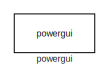
[diagram: root canvas - part 1/4, top left region]
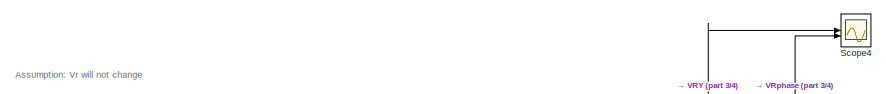
[diagram: root canvas - part 2/4, top left region]
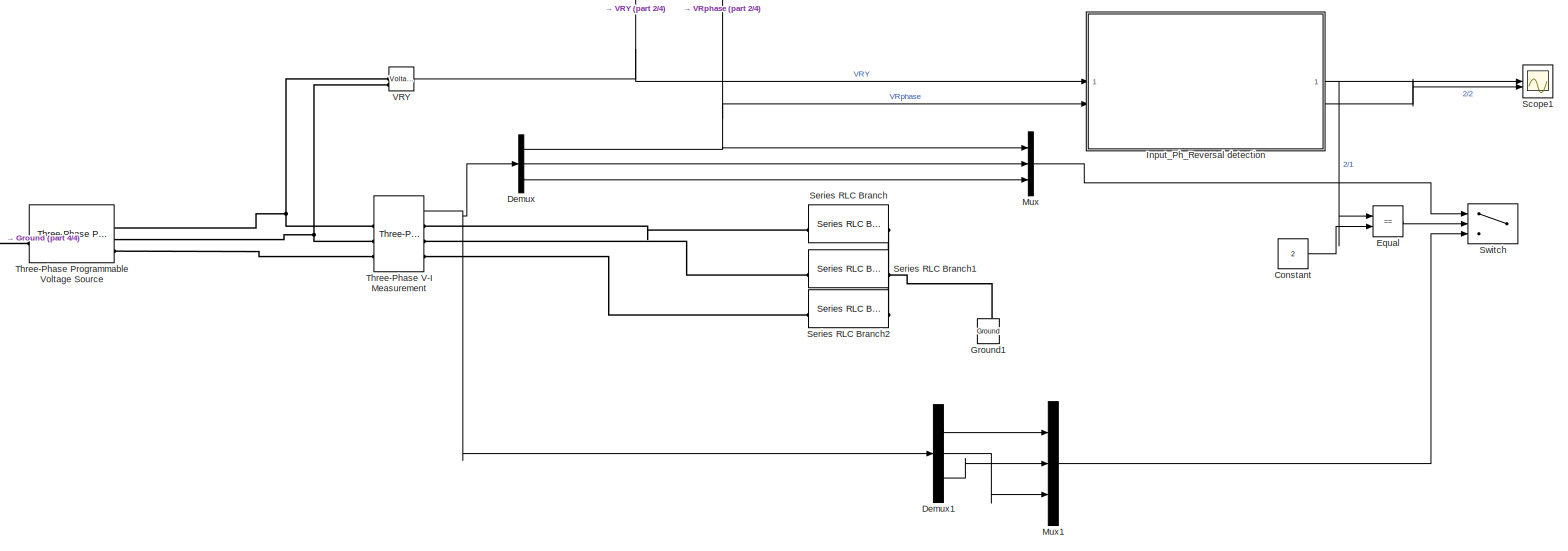
[diagram: root canvas - part 3/4, full width, middle band]
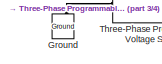
[diagram: root canvas - part 4/4, middle left region]
MODEL slx_fe5d1ba8eb64
KIND model
CONFIG AbsTol = auto
CONFIG EnableMultiTasking = off
CONFIG FixedStep = auto
CONFIG MaxStep = 1e-5
CONFIG MinStep = 1e-7
CONFIG RelTol = 1e-6
CONFIG SampleTimeConstraint = Unconstrained
CONFIG SolverName = ode45
CONFIG StartTime = 0.0
CONFIG StopTime = 10.0
BLOCK [Constant] Constant
  Value = 2
BLOCK [Demux] Demux
  Outputs = 3
BLOCK [Demux] Demux1
  Outputs = 3
BLOCK [RelationalOperator] Equal
  InputSameDT = off
  Operator = ==
  OutDataTypeStr = boolean
  RndMeth = Simplest
BLOCK [Reference] Ground  REF=spsGroundLib/Ground
  LibrarySourceBlock = sps_lib/Utilities/Ground
  NameLocation = right
  SourceBlock = spsGroundLib/Ground
  SourceType = Ground
BLOCK [Reference] Ground1  REF=spsGroundLib/Ground
  LibrarySourceBlock = sps_lib/Utilities/Ground
  NameLocation = right
  SourceBlock = spsGroundLib/Ground
  SourceType = Ground
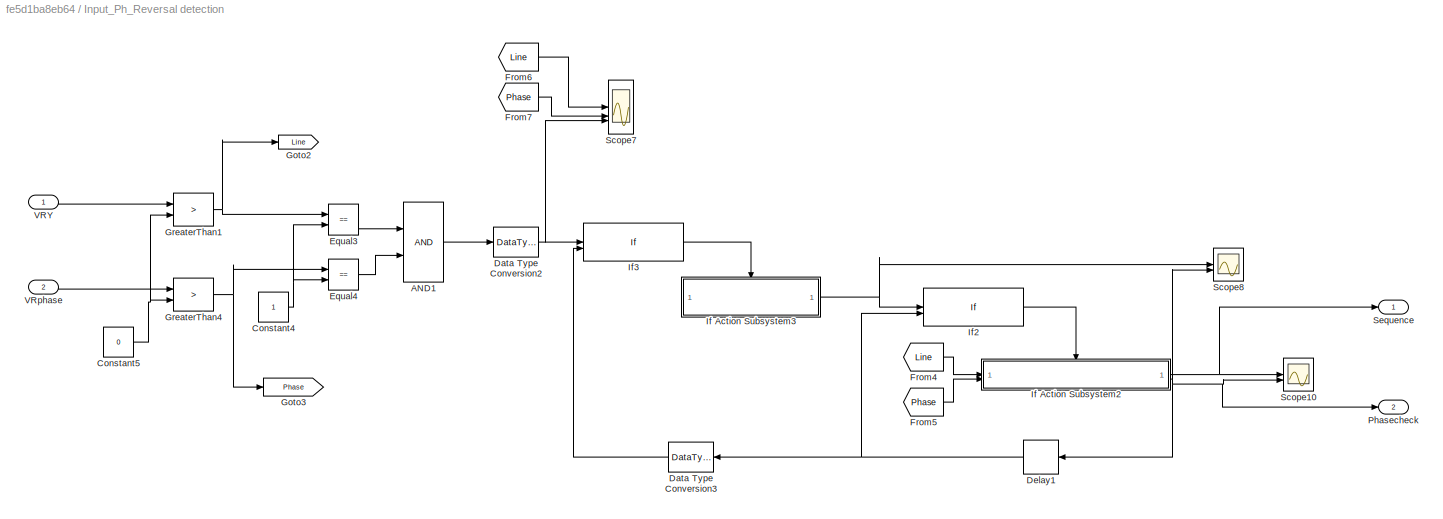
BLOCK [SubSystem] Input_Ph_Reversal detection
BLOCK [Logic] Input_Ph_Reversal detection/AND1
  AllPortsSameDT = off
  OutDataTypeStr = boolean
BLOCK [Constant] Input_Ph_Reversal detection/Constant4
BLOCK [Constant] Input_Ph_Reversal detection/Constant5
  Value = 0
BLOCK [DataTypeConversion] Input_Ph_Reversal detection/Data Type Conversion2
  OutDataTypeStr = single
  RndMeth = Floor
  SaturateOnIntegerOverflow = off
BLOCK [DataTypeConversion] Input_Ph_Reversal detection/Data Type Conversion3
  NameLocation = top
  OutDataTypeStr = single
  RndMeth = Floor
  SaturateOnIntegerOverflow = off
BLOCK [Delay] Input_Ph_Reversal detection/Delay1
  DelayLength = 1
  InputPortMap = u0
  NameLocation = top
BLOCK [RelationalOperator] Input_Ph_Reversal detection/Equal3
  InputSameDT = off
  Operator = ==
  OutDataTypeStr = boolean
  RndMeth = Simplest
BLOCK [RelationalOperator] Input_Ph_Reversal detection/Equal4
  InputSameDT = off
  Operator = ==
  OutDataTypeStr = boolean
  RndMeth = Simplest
BLOCK [From] Input_Ph_Reversal detection/From4
  GotoTag = Line
BLOCK [From] Input_Ph_Reversal detection/From5
  GotoTag = Phase
BLOCK [From] Input_Ph_Reversal detection/From6
  GotoTag = Line
BLOCK [From] Input_Ph_Reversal detection/From7
  GotoTag = Phase
BLOCK [Goto] Input_Ph_Reversal detection/Goto2
  GotoTag = Line
BLOCK [Goto] Input_Ph_Reversal detection/Goto3
  GotoTag = Phase
BLOCK [RelationalOperator] Input_Ph_Reversal detection/GreaterThan1
  InputSameDT = off
  Operator = >
  OutDataTypeStr = boolean
  RndMeth = Simplest
BLOCK [RelationalOperator] Input_Ph_Reversal detection/GreaterThan4
  InputSameDT = off
  Operator = >
  OutDataTypeStr = boolean
  RndMeth = Simplest
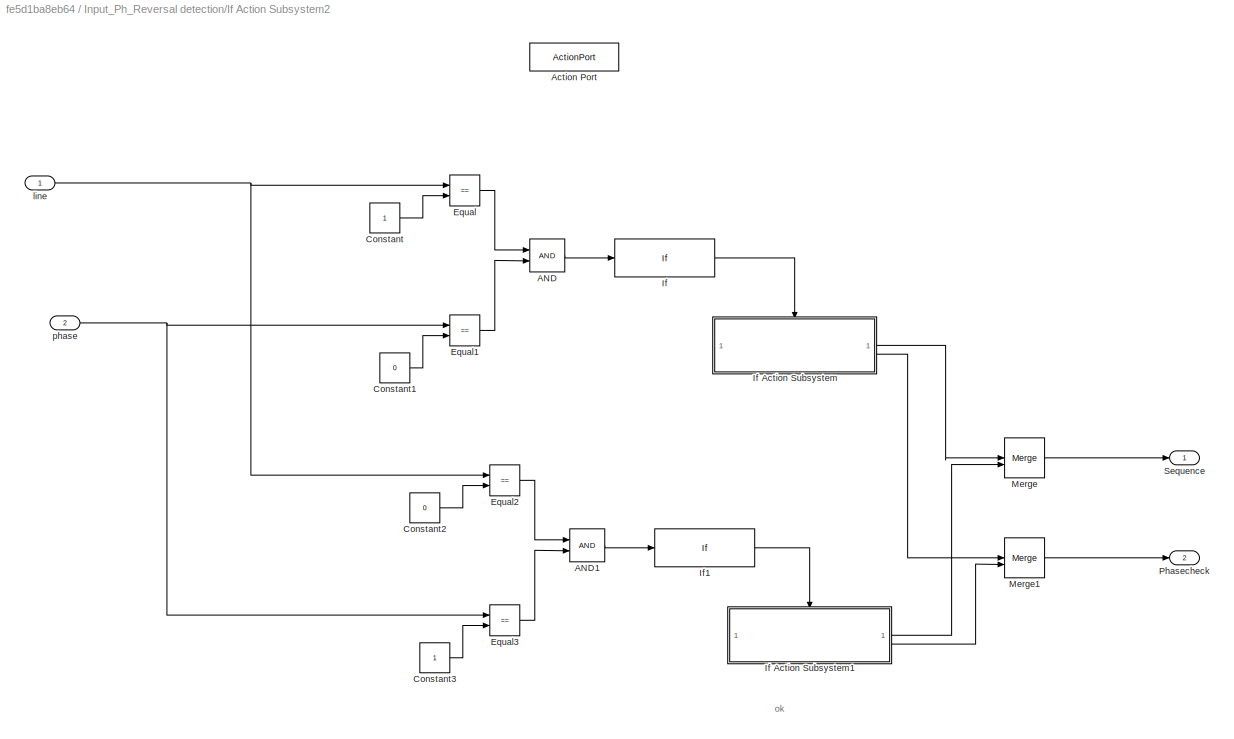
BLOCK [SubSystem] Input_Ph_Reversal detection/If Action Subsystem2
  TreatAsAtomicUnit = on
BLOCK [Logic] Input_Ph_Reversal detection/If Action Subsystem2/AND
  AllPortsSameDT = off
  OutDataTypeStr = boolean
BLOCK [Logic] Input_Ph_Reversal detection/If Action Subsystem2/AND1
  AllPortsSameDT = off
  OutDataTypeStr = boolean
BLOCK [ActionPort] Input_Ph_Reversal detection/If Action Subsystem2/Action Port
  ActionPortLabel = if(u1==1 & u2==0)
BLOCK [Constant] Input_Ph_Reversal detection/If Action Subsystem2/Constant
BLOCK [Constant] Input_Ph_Reversal detection/If Action Subsystem2/Constant1
  Value = 0
BLOCK [Constant] Input_Ph_Reversal detection/If Action Subsystem2/Constant2
  Value = 0
BLOCK [Constant] Input_Ph_Reversal detection/If Action Subsystem2/Constant3
BLOCK [RelationalOperator] Input_Ph_Reversal detection/If Action Subsystem2/Equal
  InputSameDT = off
  Operator = ==
  OutDataTypeStr = boolean
  RndMeth = Simplest
BLOCK [RelationalOperator] Input_Ph_Reversal detection/If Action Subsystem2/Equal1
  InputSameDT = off
  Operator = ==
  OutDataTypeStr = boolean
  RndMeth = Simplest
BLOCK [RelationalOperator] Input_Ph_Reversal detection/If Action Subsystem2/Equal2
  InputSameDT = off
  Operator = ==
  OutDataTypeStr = boolean
  RndMeth = Simplest
BLOCK [RelationalOperator] Input_Ph_Reversal detection/If Action Subsystem2/Equal3
  InputSameDT = off
  Operator = ==
  OutDataTypeStr = boolean
  RndMeth = Simplest
BLOCK [If] Input_Ph_Reversal detection/If Action Subsystem2/If
  IfExpression = u1 == 1
  ShowElse = off
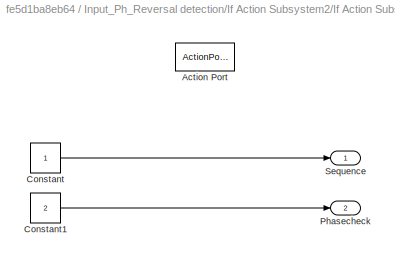
BLOCK [SubSystem] Input_Ph_Reversal detection/If Action Subsystem2/If Action Subsystem
  TreatAsAtomicUnit = on
BLOCK [ActionPort] Input_Ph_Reversal detection/If Action Subsystem2/If Action Subsystem/Action Port
  ActionPortLabel = if(u1 == 1)
BLOCK [Constant] Input_Ph_Reversal detection/If Action Subsystem2/If Action Subsystem/Constant
BLOCK [Constant] Input_Ph_Reversal detection/If Action Subsystem2/If Action Subsystem/Constant1
  Value = 2
BLOCK [Outport] Input_Ph_Reversal detection/If Action Subsystem2/If Action Subsystem/Phasecheck
  Port = 2
BLOCK [Outport] Input_Ph_Reversal detection/If Action Subsystem2/If Action Subsystem/Sequence
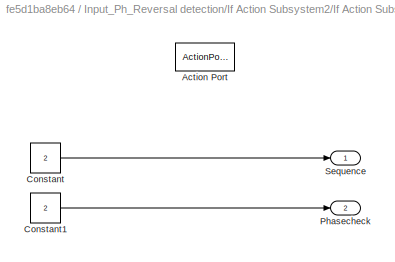
BLOCK [SubSystem] Input_Ph_Reversal detection/If Action Subsystem2/If Action Subsystem1
  TreatAsAtomicUnit = on
BLOCK [ActionPort] Input_Ph_Reversal detection/If Action Subsystem2/If Action Subsystem1/Action Port
  ActionPortLabel = if(u1 == 1)
BLOCK [Constant] Input_Ph_Reversal detection/If Action Subsystem2/If Action Subsystem1/Constant
  Value = 2
BLOCK [Constant] Input_Ph_Reversal detection/If Action Subsystem2/If Action Subsystem1/Constant1
  Value = 2
BLOCK [Outport] Input_Ph_Reversal detection/If Action Subsystem2/If Action Subsystem1/Phasecheck
  Port = 2
BLOCK [Outport] Input_Ph_Reversal detection/If Action Subsystem2/If Action Subsystem1/Sequence
BLOCK [If] Input_Ph_Reversal detection/If Action Subsystem2/If1
  IfExpression = u1 == 1
  ShowElse = off
BLOCK [Merge] Input_Ph_Reversal detection/If Action Subsystem2/Merge
BLOCK [Merge] Input_Ph_Reversal detection/If Action Subsystem2/Merge1
BLOCK [Outport] Input_Ph_Reversal detection/If Action Subsystem2/Phasecheck
  InitialOutput = [0]
  Port = 2
BLOCK [Outport] Input_Ph_Reversal detection/If Action Subsystem2/Sequence
  InitialOutput = [0]
BLOCK [Inport] Input_Ph_Reversal detection/If Action Subsystem2/line
BLOCK [Inport] Input_Ph_Reversal detection/If Action Subsystem2/phase
  Port = 2
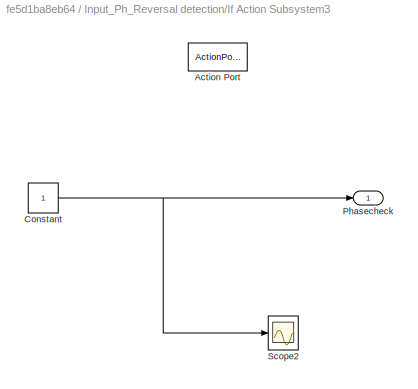
BLOCK [SubSystem] Input_Ph_Reversal detection/If Action Subsystem3
  TreatAsAtomicUnit = on
BLOCK [ActionPort] Input_Ph_Reversal detection/If Action Subsystem3/Action Port
  ActionPortLabel = if(u1 > 0 & u2==0)
BLOCK [Constant] Input_Ph_Reversal detection/If Action Subsystem3/Constant
BLOCK [Outport] Input_Ph_Reversal detection/If Action Subsystem3/Phasecheck
  InitialOutput = [0]
BLOCK [Scope] Input_Ph_Reversal detection/If Action Subsystem3/Scope2
  Floating = off
  NumInputPorts = 1
  ScopeSpecificationString = Simulink.scopes.TimeScopeBlockCfg('CurrentConfiguration', extmgr.ConfigurationSet(extmgr.Configuration('Core','General UI',true),extmgr.Configuration('Core','Source UI',true),extmgr.Configuration('Sources','WiredSimulink',true,'DataLoggingVariableName','ScopeData2'),extmgr.Configuration('Visuals','Time Domain',true,'SerializedDisplays',{struct('MinYLimReal','-0.125','MaxYLimReal','1.125','YLabelRe...<+1551ch>
BLOCK [If] Input_Ph_Reversal detection/If2
  IfExpression = u1==1 & u2==0
  NumInputs = 2
  ShowElse = off
BLOCK [If] Input_Ph_Reversal detection/If3
  IfExpression = u1 > 0 & u2==0
  NumInputs = 2
  ShowElse = off
BLOCK [Outport] Input_Ph_Reversal detection/Phasecheck
  Port = 2
BLOCK [Scope] Input_Ph_Reversal detection/Scope10
  Floating = off
  NumInputPorts = 2
  ScopeSpecificationString = Simulink.scopes.TimeScopeBlockCfg('CurrentConfiguration', extmgr.ConfigurationSet(extmgr.Configuration('Core','General UI',true),extmgr.Configuration('Core','Source UI',true),extmgr.Configuration('Sources','WiredSimulink',true,'DataLoggingVariableName','ScopeData5'),extmgr.Configuration('Visuals','Time Domain',true,'SerializedDisplays',{struct('MinYLimReal','-0.25','MaxYLimReal','2.25','YLabelReal...<+1634ch>
BLOCK [Scope] Input_Ph_Reversal detection/Scope7
  Floating = off
  NumInputPorts = 3
  ScopeSpecificationString = Simulink.scopes.TimeScopeBlockCfg('CurrentConfiguration', extmgr.ConfigurationSet(extmgr.Configuration('Core','General UI',true),extmgr.Configuration('Core','Source UI',true),extmgr.Configuration('Sources','WiredSimulink',true,'DataLoggingVariableName','ScopeData6'),extmgr.Configuration('Visuals','Time Domain',true,'SerializedDisplays',{struct('MinYLimReal','-0.125','MaxYLimReal','1.125','YLabelRe...<+1523ch>
BLOCK [Scope] Input_Ph_Reversal detection/Scope8
  Floating = off
  NumInputPorts = 2
  ScopeSpecificationString = Simulink.scopes.TimeScopeBlockCfg('CurrentConfiguration', extmgr.ConfigurationSet(extmgr.Configuration('Core','General UI',true),extmgr.Configuration('Core','Source UI',true),extmgr.Configuration('Sources','WiredSimulink',true,'DataLoggingVariableName','ScopeData7'),extmgr.Configuration('Visuals','Time Domain',true,'SerializedDisplays',{struct('MinYLimReal','-0.25','MaxYLimReal','2.25','YLabelReal...<+1634ch>
BLOCK [Outport] Input_Ph_Reversal detection/Sequence
BLOCK [Inport] Input_Ph_Reversal detection/VRY
BLOCK [Inport] Input_Ph_Reversal detection/VRphase
  Port = 2
BLOCK [Mux] Mux
  DisplayOption = bar
  Inputs = 3
BLOCK [Mux] Mux1
  DisplayOption = bar
  Inputs = 3
BLOCK [Scope] Scope1
  Floating = off
  NumInputPorts = 2
  ScopeSpecificationString = Simulink.scopes.TimeScopeBlockCfg('CurrentConfiguration', extmgr.ConfigurationSet(extmgr.Configuration('Core','General UI',true),extmgr.Configuration('Core','Source UI',true),extmgr.Configuration('Sources','WiredSimulink',true,'DataLoggingVariableName','ScopeData1'),extmgr.Configuration('Visuals','Time Domain',true,'SerializedDisplays',{struct('MinYLimReal','-0.25','MaxYLimReal','2.25','YLabelReal...<+2109ch>
BLOCK [Scope] Scope4
  Floating = off
  NumInputPorts = 2
  ScopeSpecificationString = Simulink.scopes.TimeScopeBlockCfg('CurrentConfiguration', extmgr.ConfigurationSet(extmgr.Configuration('Core','General UI',true),extmgr.Configuration('Core','Source UI',true),extmgr.Configuration('Sources','WiredSimulink',true,'DataLoggingVariableName','ScopeData4'),extmgr.Configuration('Visuals','Time Domain',true,'SerializedDisplays',{struct('MinYLimReal','-707.09709','MaxYLimReal','707.09709','...<+1511ch>
BLOCK [Reference] Series RLC Branch  REF=spsSeriesRLCBranchLib/Series RLC Branch
  LibrarySourceBlock = sps_lib/Passives/Series RLC Branch
  SourceBlock = spsSeriesRLCBranchLib/Series RLC Branch
  SourceType = Series RLC Branch
BLOCK [Reference] Series RLC Branch1  REF=spsSeriesRLCBranchLib/Series RLC Branch
  LibrarySourceBlock = sps_lib/Passives/Series RLC Branch
  SourceBlock = spsSeriesRLCBranchLib/Series RLC Branch
  SourceType = Series RLC Branch
BLOCK [Reference] Series RLC Branch2  REF=spsSeriesRLCBranchLib/Series RLC Branch
  LibrarySourceBlock = sps_lib/Passives/Series RLC Branch
  SourceBlock = spsSeriesRLCBranchLib/Series RLC Branch
  SourceType = Series RLC Branch
BLOCK [Switch] Switch
  Criteria = u2 > Threshold
  InputSameDT = off
  SaturateOnIntegerOverflow = off
BLOCK [Reference] Three-Phase Programmable Voltage Source  REF=spsThreePhaseProgrammableVoltageSourceLib/Three-Phase
Programmable
Voltage Source
  LibrarySourceBlock = sps_lib/Sources/Three-Phase\nProgrammable\nVoltage Source
  SourceBlock = spsThreePhaseProgrammableVoltageSourceLib/Three-Phase\nProgrammable\nVoltage Source
  SourceType = Three-Phase Programmable Voltage Source
BLOCK [Reference] Three-Phase V-I Measurement  REF=spsThreePhaseVIMeasurementLib/Three-Phase
V-I Measurement
  LibrarySourceBlock = sps_lib/Sensors and Measurements/Three-Phase\nV-I Measurement
  SourceBlock = spsThreePhaseVIMeasurementLib/Three-Phase\nV-I Measurement
  SourceType = Three-Phase VI Measurement
BLOCK [Reference] VRY  REF=spsVoltageMeasurementLib/Voltage Measurement
  LibrarySourceBlock = sps_lib/Sensors and Measurements/Voltage Measurement
  SourceBlock = spsVoltageMeasurementLib/Voltage Measurement
  SourceType = Voltage Measurement
  UserDataPersistent = on
BLOCK [Reference] powergui  REF=sps_lib/powergui
  Priority = 1
  SourceBlock = sps_lib/powergui
  SourceType = PSB option menu block
ANNOTATION (root): Assumption: Vr will not change
ANNOTATION Input_Ph_Reversal detection/If Action Subsystem2: ok
LINE Constant:1 -> Equal:2
LINE Demux1:1 -> Mux1:1
LINE Demux1:2 -> Mux1:3
LINE Demux1:3 -> Mux1:2
NET Demux:1 -> Input_Ph_Reversal detection:2, Mux:1, Scope4:2
LINE Demux:2 -> Mux:2
LINE Demux:3 -> Mux:3
LINE Equal:1 -> Switch:2
LINE Input_Ph_Reversal detection/AND1:1 -> Input_Ph_Reversal detection/Data Type Conversion2:1
NET Input_Ph_Reversal detection/Constant4:1 -> Input_Ph_Reversal detection/Equal3:2, Input_Ph_Reversal detection/Equal4:2
NET Input_Ph_Reversal detection/Constant5:1 -> Input_Ph_Reversal detection/GreaterThan1:2, Input_Ph_Reversal detection/GreaterThan4:2
NET Input_Ph_Reversal detection/Data Type Conversion2:1 -> Input_Ph_Reversal detection/If3:1, Input_Ph_Reversal detection/Scope7:3
LINE Input_Ph_Reversal detection/Data Type Conversion3:1 -> Input_Ph_Reversal detection/If3:2
NET Input_Ph_Reversal detection/Delay1:1 -> Input_Ph_Reversal detection/Data Type Conversion3:1, Input_Ph_Reversal detection/If2:2
LINE Input_Ph_Reversal detection/Equal3:1 -> Input_Ph_Reversal detection/AND1:1
LINE Input_Ph_Reversal detection/Equal4:1 -> Input_Ph_Reversal detection/AND1:2
LINE Input_Ph_Reversal detection/From4:1 -> Input_Ph_Reversal detection/If Action Subsystem2:1
LINE Input_Ph_Reversal detection/From5:1 -> Input_Ph_Reversal detection/If Action Subsystem2:2
LINE Input_Ph_Reversal detection/From6:1 -> Input_Ph_Reversal detection/Scope7:1
LINE Input_Ph_Reversal detection/From7:1 -> Input_Ph_Reversal detection/Scope7:2
NET Input_Ph_Reversal detection/GreaterThan1:1 -> Input_Ph_Reversal detection/Equal3:1, Input_Ph_Reversal detection/Goto2:1
NET Input_Ph_Reversal detection/GreaterThan4:1 -> Input_Ph_Reversal detection/Equal4:1, Input_Ph_Reversal detection/Goto3:1
LINE Input_Ph_Reversal detection/If Action Subsystem2/AND1:1 -> Input_Ph_Reversal detection/If Action Subsystem2/If1:1
LINE Input_Ph_Reversal detection/If Action Subsystem2/AND:1 -> Input_Ph_Reversal detection/If Action Subsystem2/If:1
LINE Input_Ph_Reversal detection/If Action Subsystem2/Constant1:1 -> Input_Ph_Reversal detection/If Action Subsystem2/Equal1:2
LINE Input_Ph_Reversal detection/If Action Subsystem2/Constant2:1 -> Input_Ph_Reversal detection/If Action Subsystem2/Equal2:2
LINE Input_Ph_Reversal detection/If Action Subsystem2/Constant3:1 -> Input_Ph_Reversal detection/If Action Subsystem2/Equal3:2
LINE Input_Ph_Reversal detection/If Action Subsystem2/Constant:1 -> Input_Ph_Reversal detection/If Action Subsystem2/Equal:2
LINE Input_Ph_Reversal detection/If Action Subsystem2/Equal1:1 -> Input_Ph_Reversal detection/If Action Subsystem2/AND:2
LINE Input_Ph_Reversal detection/If Action Subsystem2/Equal2:1 -> Input_Ph_Reversal detection/If Action Subsystem2/AND1:1
LINE Input_Ph_Reversal detection/If Action Subsystem2/Equal3:1 -> Input_Ph_Reversal detection/If Action Subsystem2/AND1:2
LINE Input_Ph_Reversal detection/If Action Subsystem2/Equal:1 -> Input_Ph_Reversal detection/If Action Subsystem2/AND:1
LINE Input_Ph_Reversal detection/If Action Subsystem2/If Action Subsystem/Constant1:1 -> Input_Ph_Reversal detection/If Action Subsystem2/If Action Subsystem/Phasecheck:1
LINE Input_Ph_Reversal detection/If Action Subsystem2/If Action Subsystem/Constant:1 -> Input_Ph_Reversal detection/If Action Subsystem2/If Action Subsystem/Sequence:1
LINE Input_Ph_Reversal detection/If Action Subsystem2/If Action Subsystem1/Constant1:1 -> Input_Ph_Reversal detection/If Action Subsystem2/If Action Subsystem1/Phasecheck:1
LINE Input_Ph_Reversal detection/If Action Subsystem2/If Action Subsystem1/Constant:1 -> Input_Ph_Reversal detection/If Action Subsystem2/If Action Subsystem1/Sequence:1
LINE Input_Ph_Reversal detection/If Action Subsystem2/If Action Subsystem1:1 -> Input_Ph_Reversal detection/If Action Subsystem2/Merge:2
LINE Input_Ph_Reversal detection/If Action Subsystem2/If Action Subsystem1:2 -> Input_Ph_Reversal detection/If Action Subsystem2/Merge1:2
LINE Input_Ph_Reversal detection/If Action Subsystem2/If Action Subsystem:1 -> Input_Ph_Reversal detection/If Action Subsystem2/Merge:1
LINE Input_Ph_Reversal detection/If Action Subsystem2/If Action Subsystem:2 -> Input_Ph_Reversal detection/If Action Subsystem2/Merge1:1
LINE Input_Ph_Reversal detection/If Action Subsystem2/If1:1 -> Input_Ph_Reversal detection/If Action Subsystem2/If Action Subsystem1:ifaction
LINE Input_Ph_Reversal detection/If Action Subsystem2/If:1 -> Input_Ph_Reversal detection/If Action Subsystem2/If Action Subsystem:ifaction
LINE Input_Ph_Reversal detection/If Action Subsystem2/Merge1:1 -> Input_Ph_Reversal detection/If Action Subsystem2/Phasecheck:1
LINE Input_Ph_Reversal detection/If Action Subsystem2/Merge:1 -> Input_Ph_Reversal detection/If Action Subsystem2/Sequence:1
NET Input_Ph_Reversal detection/If Action Subsystem2/line:1 -> Input_Ph_Reversal detection/If Action Subsystem2/Equal2:1, Input_Ph_Reversal detection/If Action Subsystem2/Equal:1
NET Input_Ph_Reversal detection/If Action Subsystem2/phase:1 -> Input_Ph_Reversal detection/If Action Subsystem2/Equal1:1, Input_Ph_Reversal detection/If Action Subsystem2/Equal3:1
NET Input_Ph_Reversal detection/If Action Subsystem2:1 -> Input_Ph_Reversal detection/Scope10:1, Input_Ph_Reversal detection/Sequence:1
NET Input_Ph_Reversal detection/If Action Subsystem2:2 -> Input_Ph_Reversal detection/Delay1:1, Input_Ph_Reversal detection/Phasecheck:1, Input_Ph_Reversal detection/Scope10:2, Input_Ph_Reversal detection/Scope8:2
NET Input_Ph_Reversal detection/If Action Subsystem3/Constant:1 -> Input_Ph_Reversal detection/If Action Subsystem3/Phasecheck:1, Input_Ph_Reversal detection/If Action Subsystem3/Scope2:1
NET Input_Ph_Reversal detection/If Action Subsystem3:1 -> Input_Ph_Reversal detection/If2:1, Input_Ph_Reversal detection/Scope8:1
LINE Input_Ph_Reversal detection/If2:1 -> Input_Ph_Reversal detection/If Action Subsystem2:ifaction
LINE Input_Ph_Reversal detection/If3:1 -> Input_Ph_Reversal detection/If Action Subsystem3:ifaction
LINE Input_Ph_Reversal detection/VRY:1 -> Input_Ph_Reversal detection/GreaterThan1:1
LINE Input_Ph_Reversal detection/VRphase:1 -> Input_Ph_Reversal detection/GreaterThan4:1
NET Input_Ph_Reversal detection:1 -> Equal:1, Scope1:1
LINE Input_Ph_Reversal detection:2 -> Scope1:2
LINE Mux1:1 -> Switch:3
LINE Mux:1 -> Switch:1
NET Three-Phase V-I Measurement:1 -> Demux1:1, Demux:1
NET VRY:1 -> Input_Ph_Reversal detection:1, Scope4:1
PNET net1: Ground1:LConn1 -- Series RLC Branch1:RConn1 -- Series RLC Branch2:RConn1 -- Series RLC Branch:RConn1
PLINE Ground:LConn1 -- Three-Phase Programmable Voltage Source:LConn1
PLINE Series RLC Branch1:LConn1 -- Three-Phase V-I Measurement:RConn2
PLINE Series RLC Branch2:LConn1 -- Three-Phase V-I Measurement:RConn3
PLINE Series RLC Branch:LConn1 -- Three-Phase V-I Measurement:RConn1
PNET net2: Three-Phase Programmable Voltage Source:RConn1 -- Three-Phase V-I Measurement:LConn1 -- VRY:LConn1
PNET net3: Three-Phase Programmable Voltage Source:RConn2 -- Three-Phase V-I Measurement:LConn2 -- VRY:LConn2
PLINE Three-Phase Programmable Voltage Source:RConn3 -- Three-Phase V-I Measurement:LConn3
note: NET lines group one-source signal fan-out (src -> all destinations, sorted); 1:1 wires keep LINE; PNET lines group multi-terminal physical nets as a canonical sorted terminal list (undirected conserving connections); 2-terminal nets keep the pairwise PLINE form
